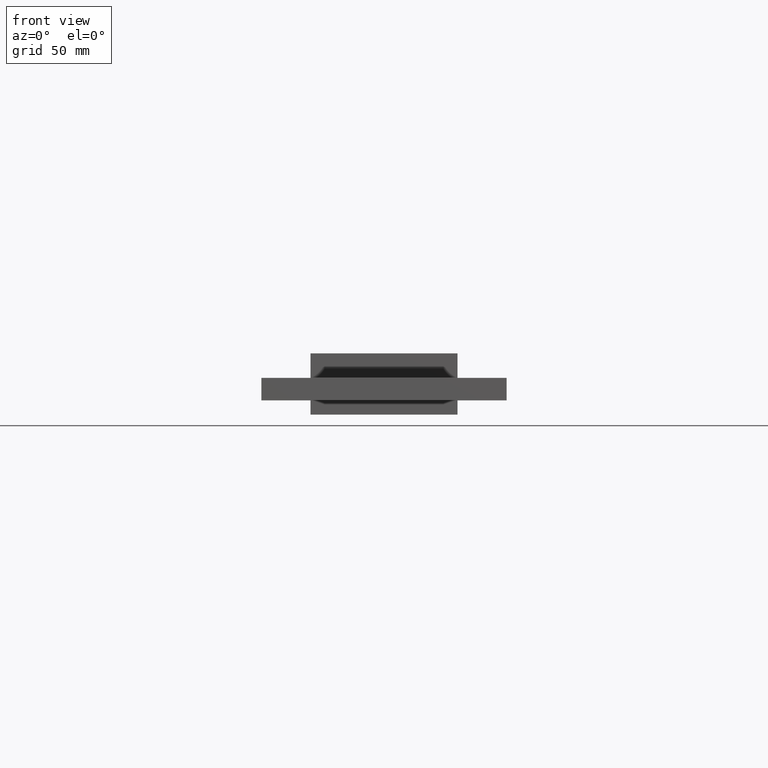
[diagram: clean part render]
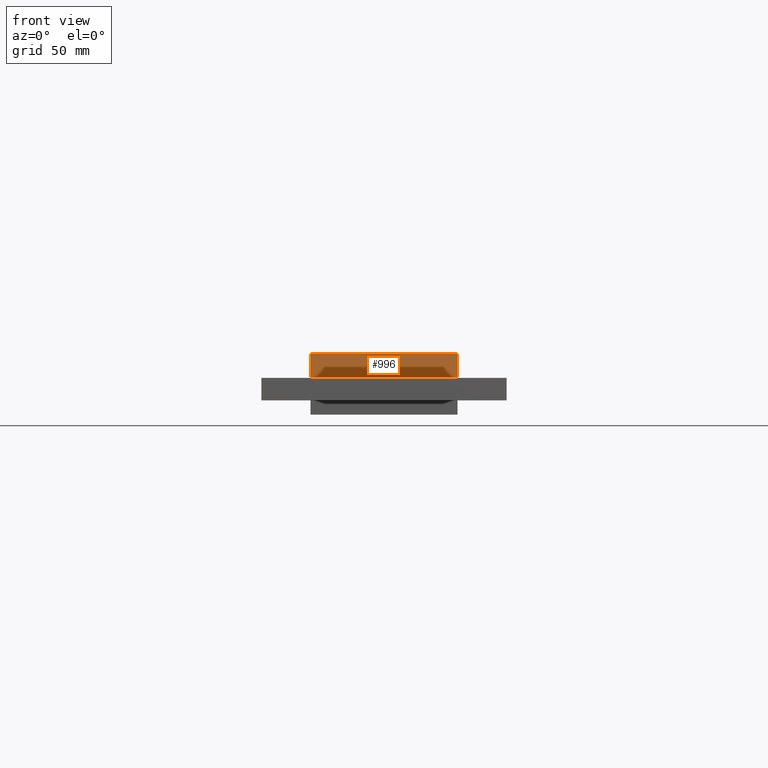
[diagram: same view with one face highlighted and labeled with its STEP entity id]
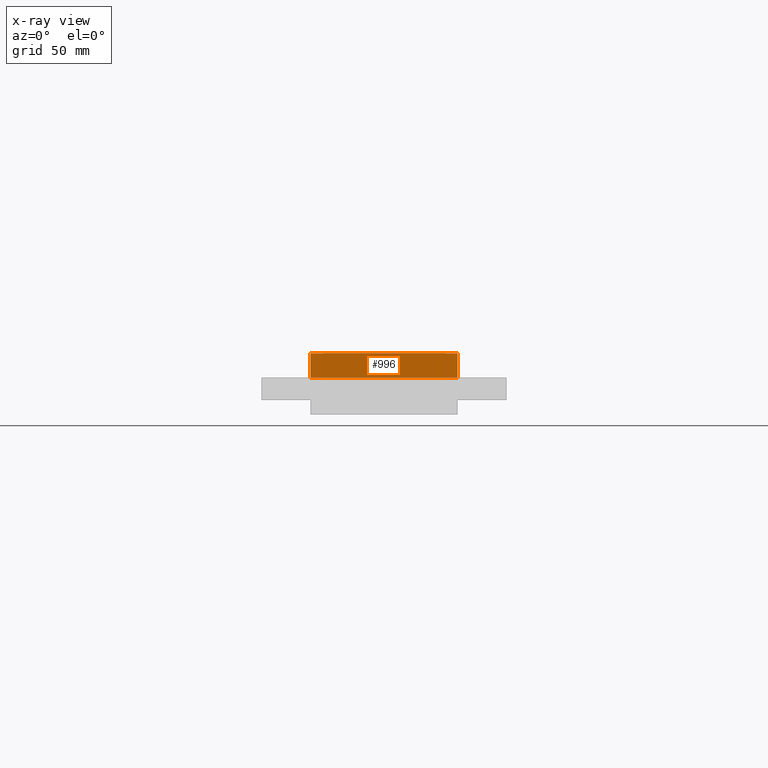
[diagram: x-ray of the same camera — body ghosted, the highlighted face saturated]
A machine part, front view. The second image highlights one B-rep face of the part: STEP entity #996.
The next image is the same camera in x-ray: the body ghosted, the highlighted face saturated — about 0% of this face is hidden behind the body in this view.
In plain terms, the highlighted planar face has unit normal (0, -1, 0).
Its self-contained STEP definition (entity closure, byte-faithful):
#92=PLANE('',#1083);
#130=FACE_OUTER_BOUND('',#200,.T.);
#200=EDGE_LOOP('',(#813,#814,#815,#816));
#278=LINE('',#1514,#370);
#281=LINE('',#1519,#373);
#299=LINE('',#1550,#391);
#300=LINE('',#1552,#392);
#370=VECTOR('',#1233,10.);
#373=VECTOR('',#1238,10.);
#391=VECTOR('',#1268,10.);
#392=VECTOR('',#1271,10.);
#507=VERTEX_POINT('',#1512);
#508=VERTEX_POINT('',#1513);
#509=VERTEX_POINT('',#1518);
#516=VERTEX_POINT('',#1548);
#606=EDGE_CURVE('',#507,#508,#278,.T.);
#609=EDGE_CURVE('',#509,#507,#281,.T.);
#627=EDGE_CURVE('',#516,#508,#299,.T.);
#628=EDGE_CURVE('',#509,#516,#300,.T.);
#813=ORIENTED_EDGE('',*,*,#628,.T.);
#814=ORIENTED_EDGE('',*,*,#627,.T.);
#815=ORIENTED_EDGE('',*,*,#606,.F.);
#816=ORIENTED_EDGE('',*,*,#609,.F.);
#996=ADVANCED_FACE('',(#130),#92,.T.);
#1083=AXIS2_PLACEMENT_3D('',#1551,#1269,#1270);
#1233=DIRECTION('',(3.70074341541719E-16,-3.70074341541719E-16,-1.));
#1238=DIRECTION('',(1.,0.,0.));
#1268=DIRECTION('',(1.,0.,0.));
#1269=DIRECTION('center_axis',(0.,-1.,3.70074341541719E-16));
#1270=DIRECTION('ref_axis',(-3.70074341541719E-16,-3.70074341541719E-16,
-1.));
#1271=DIRECTION('',(-3.70074341541719E-16,-3.70074341541719E-16,-1.));
#1512=CARTESIAN_POINT('',(35.9999999999999,-144.,15.));
#1513=CARTESIAN_POINT('',(35.9999999999999,-144.,3.));
#1514=CARTESIAN_POINT('',(36.,-144.,7.50000000000002));
#1518=CARTESIAN_POINT('',(-36.,-144.,15.));
#1519=CARTESIAN_POINT('',(-36.,-144.,15.));
#1548=CARTESIAN_POINT('',(-36.,-144.,3.));
#1550=CARTESIAN_POINT('',(-36.,-144.,3.));
#1551=CARTESIAN_POINT('Origin',(-36.,-144.,15.));
#1552=CARTESIAN_POINT('',(-36.,-144.,7.50000000000006));